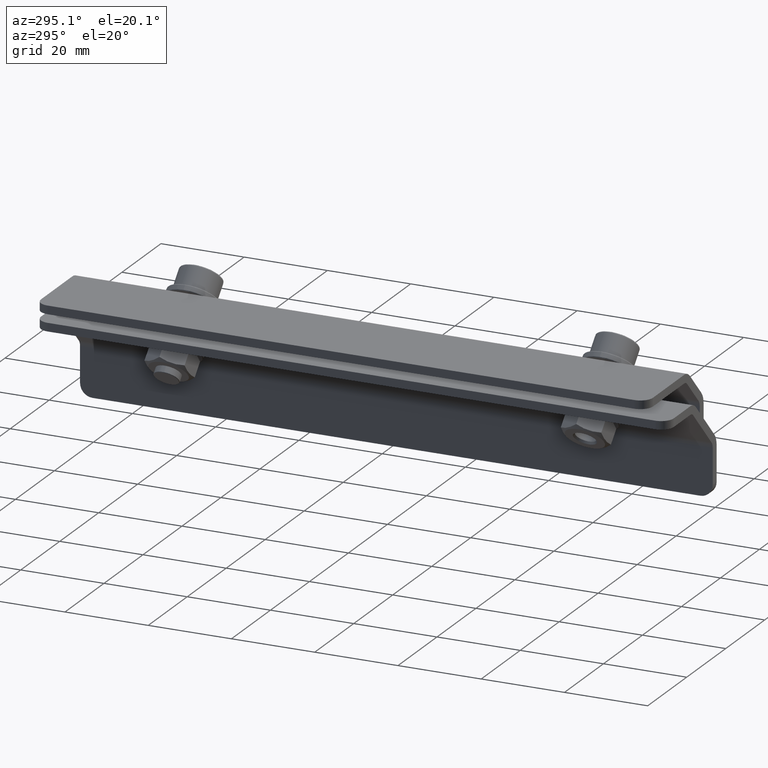
[diagram: clean part render]
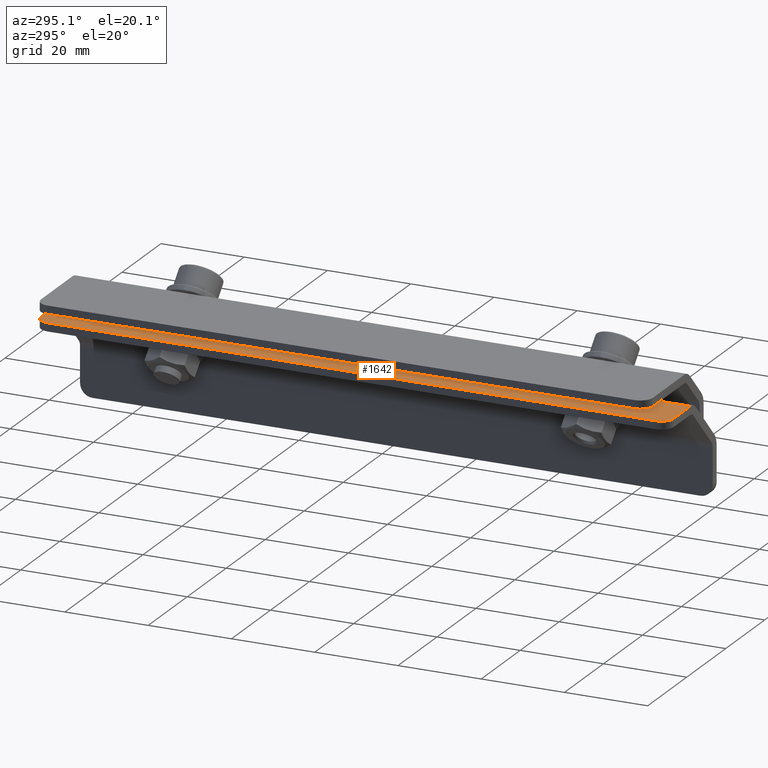
[diagram: same view with one face highlighted and labeled with its STEP entity id]
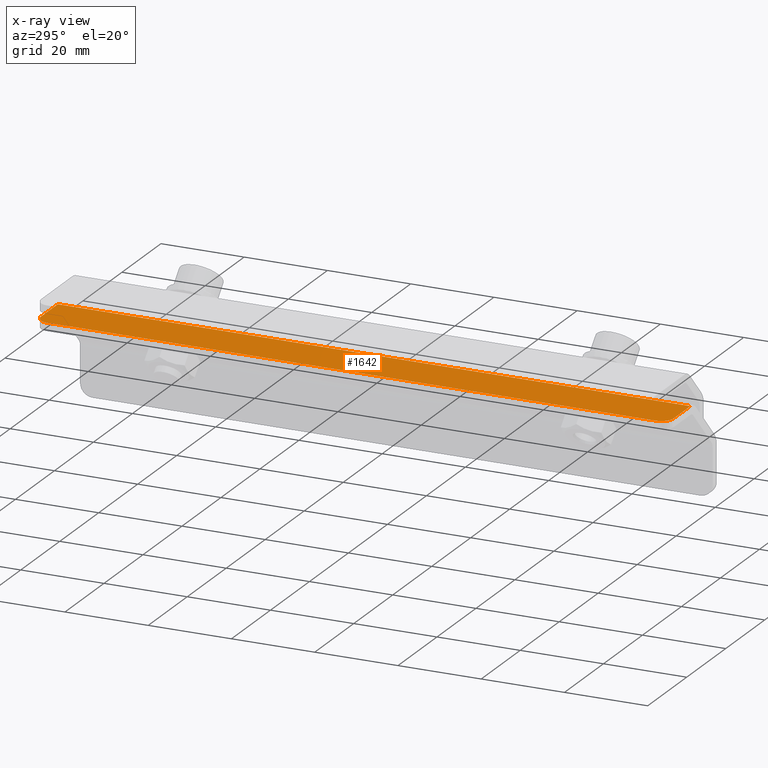
[diagram: x-ray of the same camera — body ghosted, the highlighted face saturated]
A machine part, auxiliary view. The second image highlights one B-rep face of the part: STEP entity #1642.
The next image is the same camera in x-ray: the body ghosted, the highlighted face saturated — about 0% of this face is hidden behind the body in this view.
In plain terms, the highlighted planar face has unit normal (0, 0, -1).
Its self-contained STEP definition (entity closure, byte-faithful):
#1 = VECTOR ( 'NONE', #2845, 1000.000000000000000 ) ;
#80 = DIRECTION ( 'NONE',  ( -1.000000000000000000, -0.000000000000000000, -0.000000000000000000 ) ) ;
#219 = EDGE_CURVE ( 'NONE', #1782, #4169, #3593, .T. ) ;
#427 = LINE ( 'NONE', #1092, #2374 ) ;
#505 = CARTESIAN_POINT ( 'NONE',  ( 7.917705587898879571, -79.71243701921707725, 164.5000000000000000 ) ) ;
#520 = EDGE_CURVE ( 'NONE', #1959, #4169, #3191, .T. ) ;
#773 = DIRECTION ( 'NONE',  ( 0.000000000000000000, 0.000000000000000000, -1.000000000000000000 ) ) ;
#920 = EDGE_CURVE ( 'NONE', #2622, #2817, #967, .T. ) ;
#967 = LINE ( 'NONE', #3330, #3103 ) ;
#1010 = CARTESIAN_POINT ( 'NONE',  ( -0.6472655695567326450, 72.28756298078290854, 164.5000000000000000 ) ) ;
#1070 = DIRECTION ( 'NONE',  ( 0.000000000000000000, 1.000000000000000000, -0.000000000000000000 ) ) ;
#1082 = DIRECTION ( 'NONE',  ( -1.000000000000000000, 0.000000000000000000, 0.000000000000000000 ) ) ;
#1092 = CARTESIAN_POINT ( 'NONE',  ( -3.647265569556731979, 72.48756298078292559, 164.5000000000000000 ) ) ;
#1095 = CARTESIAN_POINT ( 'NONE',  ( -3.647265569556731979, 72.48756298078292559, 164.5000000000000000 ) ) ;
#1381 = ORIENTED_EDGE ( 'NONE', *, *, #2370, .F. ) ;
#1484 = ORIENTED_EDGE ( 'NONE', *, *, #2419, .F. ) ;
#1642 = ADVANCED_FACE ( 'NONE', ( #2452 ), #4064, .F. ) ;
#1732 = VECTOR ( 'NONE', #2338, 1000.000000000000000 ) ;
#1782 = VERTEX_POINT ( 'NONE', #2188 ) ;
#1814 = DIRECTION ( 'NONE',  ( -1.000000000000000000, 0.000000000000000000, -0.000000000000000000 ) ) ;
#1883 = CIRCLE ( 'NONE', #2301, 2.999999999999999112 ) ;
#1959 = VERTEX_POINT ( 'NONE', #3637 ) ;
#2145 = EDGE_LOOP ( 'NONE', ( #4282, #3990, #1484, #4299, #1381, #3850 ) ) ;
#2188 = CARTESIAN_POINT ( 'NONE',  ( -3.647265569556731979, 69.28756298078290854, 164.5000000000000000 ) ) ;
#2301 = AXIS2_PLACEMENT_3D ( 'NONE', #3119, #773, #1082 ) ;
#2338 = DIRECTION ( 'NONE',  ( -0.000000000000000000, -1.000000000000000000, -0.000000000000000000 ) ) ;
#2350 = CARTESIAN_POINT ( 'NONE',  ( -0.6472655695567326450, 69.28756298078290854, 164.5000000000000000 ) ) ;
#2370 = EDGE_CURVE ( 'NONE', #1959, #2622, #4017, .T. ) ;
#2374 = VECTOR ( 'NONE', #1070, 1000.000000000000000 ) ;
#2419 = EDGE_CURVE ( 'NONE', #2817, #3021, #1883, .T. ) ;
#2427 = CARTESIAN_POINT ( 'NONE',  ( -3.647265569556731979, -76.71243701921709146, 164.5000000000000000 ) ) ;
#2452 = FACE_OUTER_BOUND ( 'NONE', #2145, .T. ) ;
#2622 = VERTEX_POINT ( 'NONE', #505 ) ;
#2798 = CARTESIAN_POINT ( 'NONE',  ( 17.35273443044326669, 72.28756298078290854, 164.5000000000000000 ) ) ;
#2817 = VERTEX_POINT ( 'NONE', #3530 ) ;
#2845 = DIRECTION ( 'NONE',  ( -1.000000000000000000, 0.000000000000000000, -0.000000000000000000 ) ) ;
#2982 = DIRECTION ( 'NONE',  ( 1.000000000000000000, 0.000000000000000000, 0.000000000000000000 ) ) ;
#3021 = VERTEX_POINT ( 'NONE', #2427 ) ;
#3095 = EDGE_CURVE ( 'NONE', #3021, #1782, #427, .T. ) ;
#3103 = VECTOR ( 'NONE', #80, 1000.000000000000000 ) ;
#3119 = CARTESIAN_POINT ( 'NONE',  ( -0.6472655695567326450, -76.71243701921709146, 164.5000000000000000 ) ) ;
#3191 = LINE ( 'NONE', #2798, #1 ) ;
#3330 = CARTESIAN_POINT ( 'NONE',  ( 10.74613271264508718, -79.71243701921707725, 164.5000000000000000 ) ) ;
#3504 = DIRECTION ( 'NONE',  ( 0.000000000000000000, 0.000000000000000000, -1.000000000000000000 ) ) ;
#3530 = CARTESIAN_POINT ( 'NONE',  ( -0.6472655695567326450, -79.71243701921709146, 164.5000000000000000 ) ) ;
#3593 = CIRCLE ( 'NONE', #3664, 2.999999999999999112 ) ;
#3631 = CARTESIAN_POINT ( 'NONE',  ( 7.917705587898872466, 72.48756298078292559, 164.5000000000000000 ) ) ;
#3637 = CARTESIAN_POINT ( 'NONE',  ( 7.917705587898879571, 72.28756298078290854, 164.5000000000000000 ) ) ;
#3664 = AXIS2_PLACEMENT_3D ( 'NONE', #2350, #3686, #2982 ) ;
#3686 = DIRECTION ( 'NONE',  ( -0.000000000000000000, -0.000000000000000000, -1.000000000000000000 ) ) ;
#3850 = ORIENTED_EDGE ( 'NONE', *, *, #520, .T. ) ;
#3924 = AXIS2_PLACEMENT_3D ( 'NONE', #1095, #3504, #1814 ) ;
#3990 = ORIENTED_EDGE ( 'NONE', *, *, #3095, .F. ) ;
#4017 = LINE ( 'NONE', #3631, #1732 ) ;
#4064 = PLANE ( 'NONE',  #3924 ) ;
#4169 = VERTEX_POINT ( 'NONE', #1010 ) ;
#4282 = ORIENTED_EDGE ( 'NONE', *, *, #219, .F. ) ;
#4299 = ORIENTED_EDGE ( 'NONE', *, *, #920, .F. ) ;